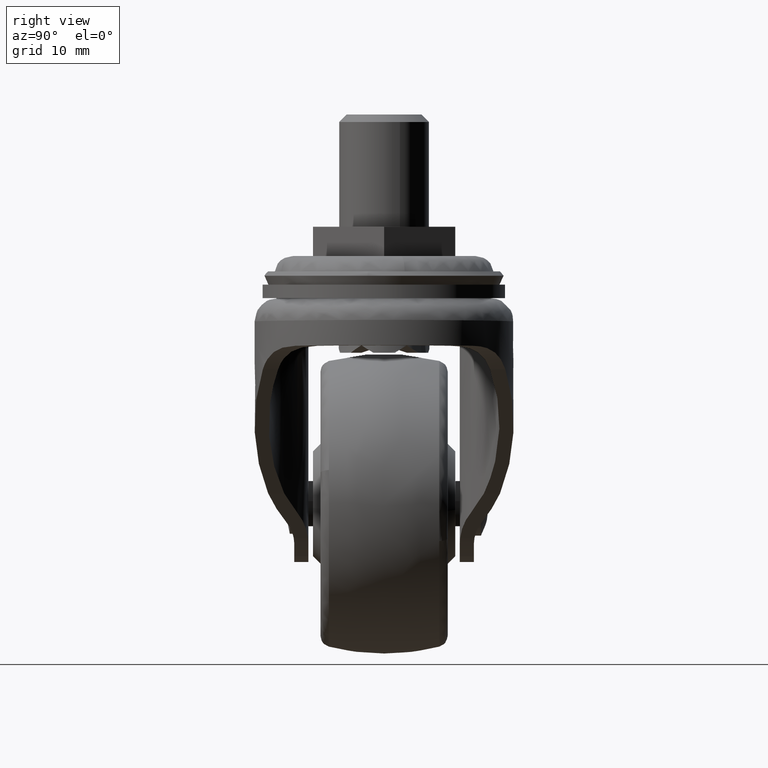
[diagram: clean part render]
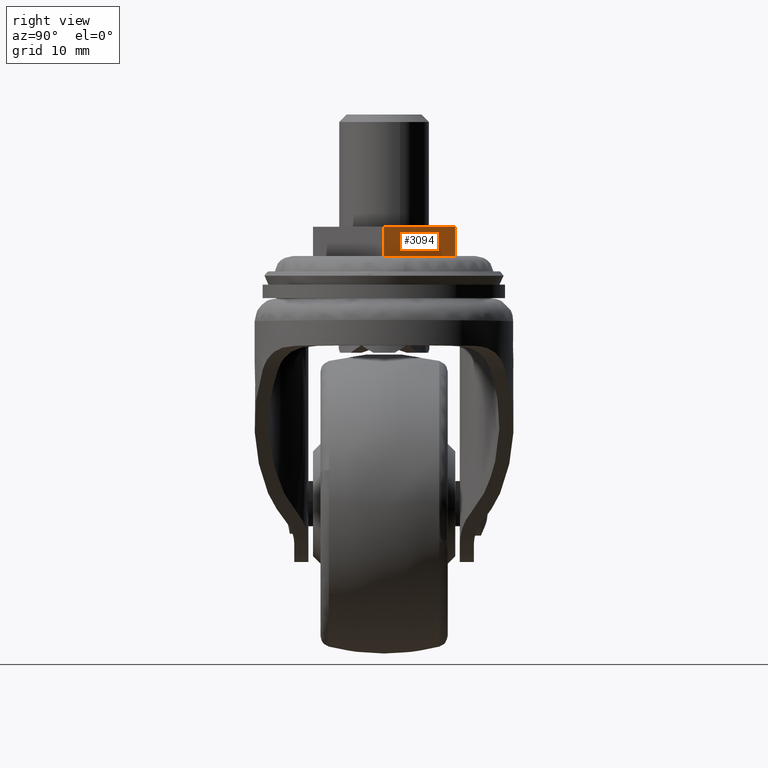
[diagram: same view with one face highlighted and labeled with its STEP entity id]
A machine part, right view. The second image highlights one B-rep face of the part: STEP entity #3094.
In plain terms, the highlighted face is a freeform B-spline surface patch.
Its self-contained STEP definition (entity closure, byte-faithful):
#3044=CARTESIAN_POINT('',(10.969654999999820,0.0,3.899981000000000));
#3045=VERTEX_POINT('',#3044);
#3052=CARTESIAN_POINT('',(10.969654999999820,0.0,0.0));
#3053=VERTEX_POINT('',#3052);
#3059=CARTESIAN_POINT('',(10.969654999999820,0.0,0.0));
#3060=CARTESIAN_POINT('',(10.969654999999820,0.0,3.899981000000000));
#3061=QUASI_UNIFORM_CURVE('',1,(#3059,#3060),.UNSPECIFIED.,.F.,.U.);
#3062=EDGE_CURVE('',#3053,#3045,#3061,.T.);
#3067=CARTESIAN_POINT('',(5.210859852030573,9.974524981586947,-0.194804043391080));
#3068=CARTESIAN_POINT('',(11.243622295083711,-0.474525236397004,-0.194804043391080));
#3069=CARTESIAN_POINT('',(5.210859852030573,9.974524981586947,4.094785147996722));
#3070=CARTESIAN_POINT('',(11.243622295083711,-0.474525236397004,4.094785147996722));
#3071=B_SPLINE_SURFACE_WITH_KNOTS('',1,1,((#3067,#3069),(#3068,#3070)),.UNSPECIFIED.,.F.,.F.,.U.,(2,2),(2,2),(0.0,12.065524155720000),(0.0,4.289589191387803),.UNSPECIFIED.);
#3072=CARTESIAN_POINT('',(5.484826999999910,9.499999999999801,3.899981000000000));
#3073=VERTEX_POINT('',#3072);
#3074=CARTESIAN_POINT('',(5.484826999999910,9.499999999999801,3.899981000000000));
#3075=CARTESIAN_POINT('',(10.969654999999820,0.0,3.899981000000000));
#3076=QUASI_UNIFORM_CURVE('',1,(#3074,#3075),.UNSPECIFIED.,.F.,.U.);
#3077=EDGE_CURVE('',#3073,#3045,#3076,.T.);
#3078=ORIENTED_EDGE('',*,*,#3077,.T.);
#3079=ORIENTED_EDGE('',*,*,#3062,.F.);
#3080=CARTESIAN_POINT('',(5.484826999999910,9.499999999999801,0.0));
#3081=VERTEX_POINT('',#3080);
#3082=CARTESIAN_POINT('',(5.484826999999910,9.499999999999801,0.0));
#3083=CARTESIAN_POINT('',(10.969654999999820,0.0,0.0));
#3084=QUASI_UNIFORM_CURVE('',1,(#3082,#3083),.UNSPECIFIED.,.F.,.U.);
#3085=EDGE_CURVE('',#3081,#3053,#3084,.T.);
#3086=ORIENTED_EDGE('',*,*,#3085,.F.);
#3087=CARTESIAN_POINT('',(5.484826999999910,9.499999999999801,0.0));
#3088=CARTESIAN_POINT('',(5.484826999999910,9.499999999999801,3.899981000000000));
#3089=QUASI_UNIFORM_CURVE('',1,(#3087,#3088),.UNSPECIFIED.,.F.,.U.);
#3090=EDGE_CURVE('',#3081,#3073,#3089,.T.);
#3091=ORIENTED_EDGE('',*,*,#3090,.T.);
#3092=EDGE_LOOP('',(#3078,#3079,#3086,#3091));
#3093=FACE_OUTER_BOUND('',#3092,.T.);
#3094=ADVANCED_FACE('',(#3093),#3071,.F.);